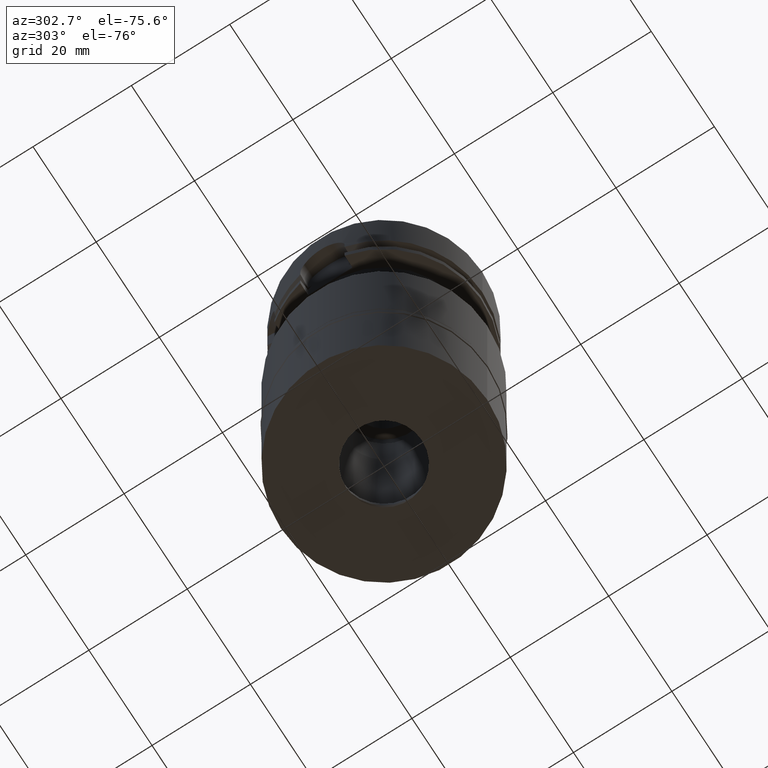
[diagram: clean part render]
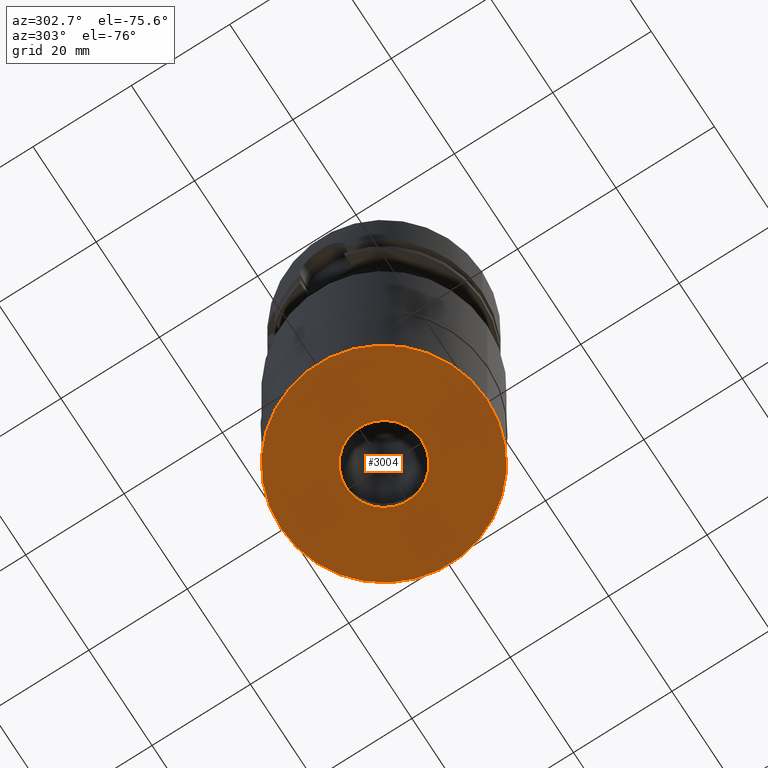
[diagram: same view with one face highlighted and labeled with its STEP entity id]
A machine part, auxiliary view. The second image highlights one B-rep face of the part: STEP entity #3004.
In plain terms, the highlighted planar face has unit normal (0, 0, -1).
Its self-contained STEP definition (entity closure, byte-faithful):
#32 = CARTESIAN_POINT ( 'NONE',  ( 0.0000000000000000000, 21.00000000000000000, -24.29999999999999716 ) ) ;
#84 = VERTEX_POINT ( 'NONE', #32 ) ;
#237 = EDGE_CURVE ( 'NONE', #595, #1103, #4322, .T. ) ;
#492 = ORIENTED_EDGE ( 'NONE', *, *, #237, .F. ) ;
#595 = VERTEX_POINT ( 'NONE', #5067 ) ;
#680 = DIRECTION ( 'NONE',  ( 0.0000000000000000000, 0.0000000000000000000, -1.000000000000000000 ) ) ;
#1103 = VERTEX_POINT ( 'NONE', #5302 ) ;
#1307 = ORIENTED_EDGE ( 'NONE', *, *, #1633, .F. ) ;
#1633 = EDGE_CURVE ( 'NONE', #1103, #595, #1940, .T. ) ;
#1736 = DIRECTION ( 'NONE',  ( 0.0000000000000000000, 1.000000000000000000, 0.0000000000000000000 ) ) ;
#1801 = DIRECTION ( 'NONE',  ( 0.0000000000000000000, -1.000000000000000000, 0.0000000000000000000 ) ) ;
#1863 = CARTESIAN_POINT ( 'NONE',  ( 0.0000000000000000000, 0.0000000000000000000, -24.29999999999999716 ) ) ;
#1940 = CIRCLE ( 'NONE', #5286, 7.700000000000000178 ) ;
#2020 = AXIS2_PLACEMENT_3D ( 'NONE', #1863, #3127, #4817 ) ;
#2591 = CARTESIAN_POINT ( 'NONE',  ( 0.0000000000000000000, -21.00000000000000000, -24.29999999999999716 ) ) ;
#2634 = DIRECTION ( 'NONE',  ( 0.0000000000000000000, 0.0000000000000000000, -1.000000000000000000 ) ) ;
#2643 = AXIS2_PLACEMENT_3D ( 'NONE', #4705, #2634, #1801 ) ;
#2783 = DIRECTION ( 'NONE',  ( 0.0000000000000000000, -1.000000000000000000, 0.0000000000000000000 ) ) ;
#2971 = CARTESIAN_POINT ( 'NONE',  ( 0.0000000000000000000, 0.0000000000000000000, -24.29999999999999716 ) ) ;
#3004 = ADVANCED_FACE ( 'NONE', ( #4473, #4911 ), #5414, .T. ) ;
#3011 = ORIENTED_EDGE ( 'NONE', *, *, #3871, .F. ) ;
#3091 = DIRECTION ( 'NONE',  ( 0.0000000000000000000, 0.0000000000000000000, 1.000000000000000000 ) ) ;
#3127 = DIRECTION ( 'NONE',  ( 0.0000000000000000000, 0.0000000000000000000, 1.000000000000000000 ) ) ;
#3265 = AXIS2_PLACEMENT_3D ( 'NONE', #4545, #680, #3745 ) ;
#3361 = CIRCLE ( 'NONE', #4772, 21.00000000000000000 ) ;
#3488 = EDGE_CURVE ( 'NONE', #84, #5267, #4417, .T. ) ;
#3745 = DIRECTION ( 'NONE',  ( 0.0000000000000000000, -1.000000000000000000, 0.0000000000000000000 ) ) ;
#3813 = DIRECTION ( 'NONE',  ( 0.0000000000000000000, 0.0000000000000000000, -1.000000000000000000 ) ) ;
#3871 = EDGE_CURVE ( 'NONE', #5267, #84, #3361, .T. ) ;
#4180 = ORIENTED_EDGE ( 'NONE', *, *, #3488, .F. ) ;
#4322 = CIRCLE ( 'NONE', #2643, 7.700000000000000178 ) ;
#4417 = CIRCLE ( 'NONE', #2020, 21.00000000000000000 ) ;
#4473 = FACE_OUTER_BOUND ( 'NONE', #4661, .T. ) ;
#4545 = CARTESIAN_POINT ( 'NONE',  ( 0.0000000000000000000, 0.0000000000000000000, -24.29999999999999716 ) ) ;
#4661 = EDGE_LOOP ( 'NONE', ( #4180, #3011 ) ) ;
#4705 = CARTESIAN_POINT ( 'NONE',  ( 0.0000000000000000000, 0.0000000000000000000, -24.29999999999999716 ) ) ;
#4772 = AXIS2_PLACEMENT_3D ( 'NONE', #5292, #3091, #2783 ) ;
#4817 = DIRECTION ( 'NONE',  ( 0.0000000000000000000, 1.000000000000000000, 0.0000000000000000000 ) ) ;
#4911 = FACE_BOUND ( 'NONE', #5191, .T. ) ;
#5067 = CARTESIAN_POINT ( 'NONE',  ( 0.0000000000000000000, -7.700000000000000178, -24.29999999999999716 ) ) ;
#5191 = EDGE_LOOP ( 'NONE', ( #1307, #492 ) ) ;
#5267 = VERTEX_POINT ( 'NONE', #2591 ) ;
#5286 = AXIS2_PLACEMENT_3D ( 'NONE', #2971, #3813, #1736 ) ;
#5292 = CARTESIAN_POINT ( 'NONE',  ( 0.0000000000000000000, 0.0000000000000000000, -24.29999999999999716 ) ) ;
#5302 = CARTESIAN_POINT ( 'NONE',  ( 0.0000000000000000000, 7.700000000000000178, -24.29999999999999716 ) ) ;
#5414 = PLANE ( 'NONE',  #3265 ) ;